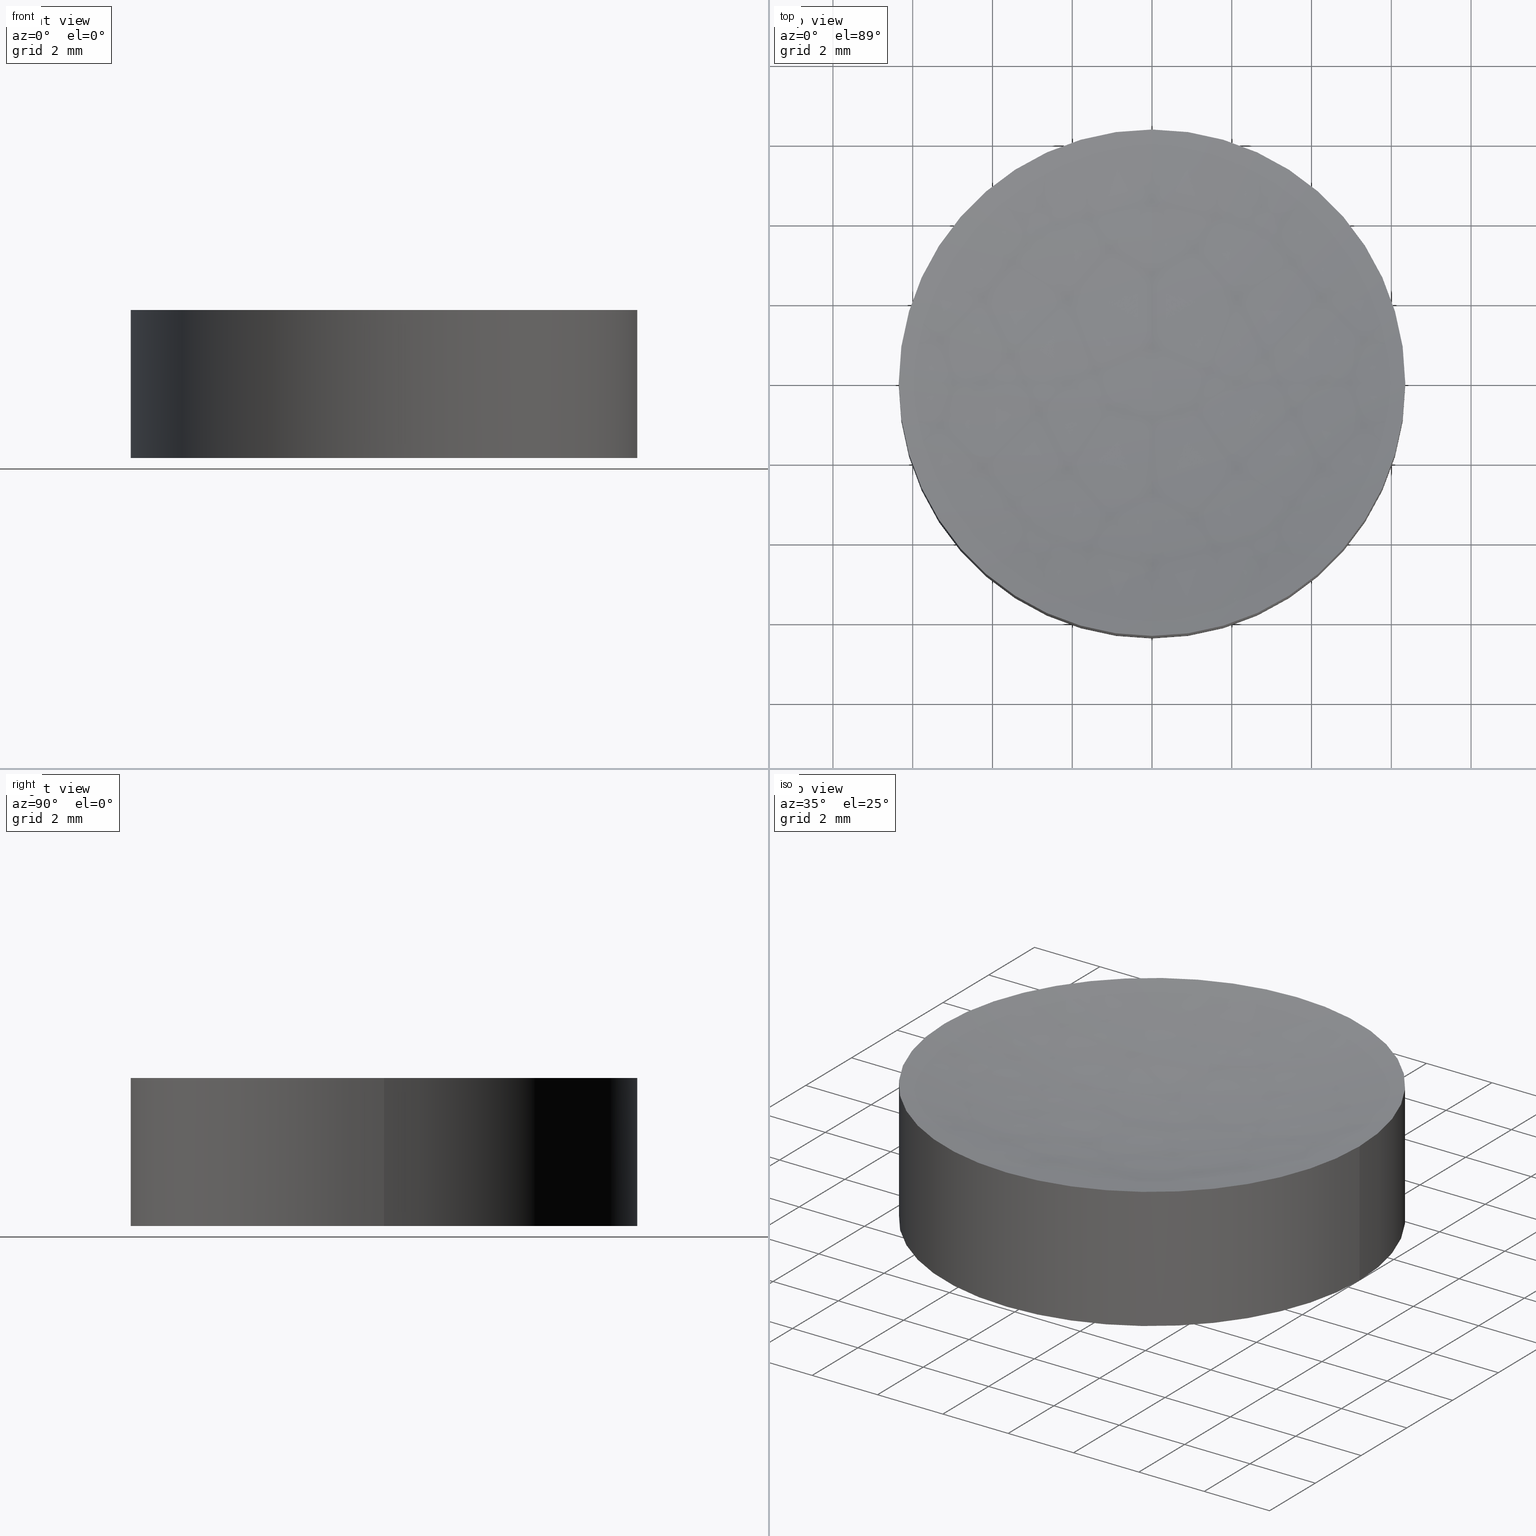
[diagram: canonical four-view strip — front | top / right | iso, engineering-drawing reading convention]
A machine part, canonical four-view strip (front | top / right | iso — engineering-drawing reading convention). The complete STEP part file that produces these views, byte-faithful:
ISO-10303-21;
HEADER;
FILE_DESCRIPTION (( 'STEP AP203' ),
    '1' );
FILE_NAME ('114-1110E UVFS bi-cv 12.7 F-30.STEP',
    '2019-01-21T08:53:15',
    ( '' ),
    ( '' ),
    'SwSTEP 2.0',
    'SolidWorks 2017',
    '' );
FILE_SCHEMA (( 'CONFIG_CONTROL_DESIGN' ));
ENDSEC;

DATA;
#1 = DIRECTION ( 'NONE',  ( 1.000000000000000000, 0.0000000000000000000, 0.0000000000000000000 ) ) ;
#2 = PERSON_AND_ORGANIZATION ( #130, #147 ) ;
#3 = CC_DESIGN_DATE_AND_TIME_ASSIGNMENT ( #217, #119, ( #105 ) ) ;
#4 = CARTESIAN_POINT ( 'NONE',  ( 2.498001805406600200E-016, 1.221245327087670000E-015, -0.7055000044287750300 ) ) ;
#5 = CARTESIAN_POINT ( 'NONE',  ( -6.349999999999999600, 1.998896044546239400E-015, -0.7055000044287750300 ) ) ;
#6 = AXIS2_PLACEMENT_3D ( 'NONE', #239, #60, #262 ) ;
#7 = ORIENTED_EDGE ( 'NONE', *, *, #231, .F. ) ;
#8 = CARTESIAN_POINT ( 'NONE',  ( 4.325579220855148700, -2.177902016982213000, 0.003903626985692347500 ) ) ;
#9 = CARTESIAN_POINT ( 'NONE',  ( 6.441541557281147400, 2.177902016982218300, 2.775102109609572000 ) ) ;
#10 = EDGE_CURVE ( 'NONE', #125, #206, #278, .T. ) ;
#11 = CARTESIAN_POINT ( 'NONE',  ( 0.0000000000000000000, 0.0000000000000000000, 0.0000000000000000000 ) ) ;
#12 = COORDINATED_UNIVERSAL_TIME_OFFSET ( 2, 0, .AHEAD. ) ;
#13 = CARTESIAN_POINT ( 'NONE',  ( 1.040834085586084300E-014, -6.424929541777834700, 3.022462348102943800 ) ) ;
#14 = CARTESIAN_POINT ( 'NONE',  ( 4.325579220855164700, -2.177902016982220500, 2.296096373014305600 ) ) ;
#15 = CARTESIAN_POINT ( 'NONE',  ( 2.097568141156078300, 6.424929541777832900, 3.022462348102940200 ) ) ;
#16 = PERSON_AND_ORGANIZATION ( #130, #147 ) ;
#17 = CC_DESIGN_DATE_AND_TIME_ASSIGNMENT ( #254, #160, ( #24 ) ) ;
#18 = DIRECTION ( 'NONE',  ( 1.000000000000000000, 0.0000000000000000000, 0.0000000000000000000 ) ) ;
#19 = ORIENTED_EDGE ( 'NONE', *, *, #293, .F. ) ;
#20 = LOCAL_TIME ( 10, 53, 15.00000000000000000, #259 ) ;
#21 =( GEOMETRIC_REPRESENTATION_CONTEXT ( 3 ) GLOBAL_UNCERTAINTY_ASSIGNED_CONTEXT ( ( #101 ) ) GLOBAL_UNIT_ASSIGNED_CONTEXT ( ( #157, #292, #159 ) ) REPRESENTATION_CONTEXT ( 'NONE', 'WORKASPACE' ) );
#22 = ADVANCED_BREP_SHAPE_REPRESENTATION ( '114-1110E UVFS bi-cv 12.7 F-30', ( #208, #273 ), #21 ) ;
#23 = CARTESIAN_POINT ( 'NONE',  ( -2.097568141156064900, -6.424929541777834700, 3.022462348102942000 ) ) ;
#24 = SECURITY_CLASSIFICATION ( '', '', #276 ) ;
#25 = PERSON_AND_ORGANIZATION ( #130, #147 ) ;
#26 = VECTOR ( 'NONE', #253, 1000.000000000000000 ) ;
#27 = AXIS2_PLACEMENT_3D ( 'NONE', #267, #288, #38 ) ;
#28 = CARTESIAN_POINT ( 'NONE',  ( -4.325579220855152200, 2.177902016982218700, 2.296096373014302500 ) ) ;
#29 = ORIENTED_EDGE ( 'NONE', *, *, #222, .F. ) ;
#30 = DIRECTION ( 'NONE',  ( 0.0000000000000000000, 0.0000000000000000000, 1.000000000000000000 ) ) ;
#31 = ADVANCED_FACE ( 'NONE', ( #186 ), #220, .F. ) ;
#32 = CARTESIAN_POINT ( 'NONE',  ( -2.097568141156078300, -6.424929541777815200, -0.7224623481029369700 ) ) ;
#33 = ORIENTED_EDGE ( 'NONE', *, *, #185, .F. ) ;
#34 = CARTESIAN_POINT ( 'NONE',  ( -3.552713678800500100E-015, 6.424929541777819600, -0.7224623481029355300 ) ) ;
#35 = DIRECTION ( 'NONE',  ( 1.000000000000000000, 0.0000000000000000000, 0.0000000000000000000 ) ) ;
#36 = CARTESIAN_POINT ( 'NONE',  ( 3.552713678800499400E-015, -6.350000000000000500, 3.005500004428780500 ) ) ;
#37 = CARTESIAN_POINT ( 'NONE',  ( 2.498001805406600200E-016, 1.221245327087670000E-015, -0.7055000044287750300 ) ) ;
#38 = DIRECTION ( 'NONE',  ( 1.000000000000000000, 0.0000000000000000000, 0.0000000000000000000 ) ) ;
#39 = CC_DESIGN_SECURITY_CLASSIFICATION ( #24, ( #166 ) ) ;
#40 = CARTESIAN_POINT ( 'NONE',  ( 6.227957547520616400, -6.424929541777834700, 3.718589182496089100 ) ) ;
#41 = EDGE_LOOP ( 'NONE', ( #77, #109, #178 ) ) ;
#42 = DIRECTION ( 'NONE',  ( 1.000000000000000000, 0.0000000000000000000, 0.0000000000000000000 ) ) ;
#43 = PRODUCT ( '114-1110E UVFS bi-cv 12.7 F-30', '114-1110E UVFS bi-cv 12.7 F-30', '', ( #45 ) ) ;
#44 = AXIS2_PLACEMENT_3D ( 'NONE', #4, #225, #129 ) ;
#45 = MECHANICAL_CONTEXT ( 'NONE', #207, 'mechanical' ) ;
#46 = PERSON_AND_ORGANIZATION_ROLE ( 'design_owner' ) ;
#47 = DATE_AND_TIME ( #295, #197 ) ;
#48 = ORIENTED_EDGE ( 'NONE', *, *, #243, .T. ) ;
#49 =( BOUNDED_SURFACE ( )  B_SPLINE_SURFACE ( 3, 3, ( 
 ( #65, #153, #15, #155 ),
 ( #9, #152, #87, #63 ),
 ( #183, #14, #180, #182 ),
 ( #40, #229, #134, #13 ) ),
 .UNSPECIFIED., .F., .F., .F. ) 
 B_SPLINE_SURFACE_WITH_KNOTS ( ( 4, 4 ),
 ( 4, 4 ),
 ( 0.0000000000000000000, 1.000000000000000000 ),
 ( 0.0000000000000000000, 1.000000000000000000 ),
 .UNSPECIFIED. ) 
 GEOMETRIC_REPRESENTATION_ITEM ( )  RATIONAL_B_SPLINE_SURFACE ( (
 ( 1.000000000000000000, 0.9958741073760455400, 0.9958741073760455400, 1.000000000000000000),
 ( 0.9833514840856564200, 0.9792942814507127300, 0.9792942814507127300, 0.9833514840856564200),
 ( 0.9833514840856564200, 0.9792942814507127300, 0.9792942814507127300, 0.9833514840856564200),
 ( 1.000000000000000000, 0.9958741073760455400, 0.9958741073760455400, 1.000000000000000000) ) ) 
 REPRESENTATION_ITEM ( '' )  SURFACE ( )  );
#50 = DESIGN_CONTEXT ( 'detailed design', #187, 'design' ) ;
#51 = LOCAL_TIME ( 10, 53, 15.00000000000000000, #84 ) ;
#52 = CIRCLE ( 'NONE', #27, 6.349999999999999600 ) ;
#53 = CARTESIAN_POINT ( 'NONE',  ( 3.552713678800500100E-015, -2.177902016982221900, 2.055102029540439200 ) ) ;
#54 = EDGE_CURVE ( 'NONE', #156, #106, #177, .T. ) ;
#55 = ADVANCED_FACE ( 'NONE', ( #260 ), #241, .F. ) ;
#56 = CARTESIAN_POINT ( 'NONE',  ( -6.227957547520603900, -6.424929541777834700, 3.718589182496088600 ) ) ;
#57 = DATE_AND_TIME ( #104, #161 ) ;
#58 = VECTOR ( 'NONE', #203, 1000.000000000000000 ) ;
#59 = CARTESIAN_POINT ( 'NONE',  ( -3.552713678800500100E-015, -6.424929541777815200, -0.7224623481029389700 ) ) ;
#60 = DIRECTION ( 'NONE',  ( 0.0000000000000000000, 0.0000000000000000000, 1.000000000000000000 ) ) ;
#61 = ORIENTED_EDGE ( 'NONE', *, *, #71, .T. ) ;
#62 = CARTESIAN_POINT ( 'NONE',  ( 6.227957547520604800, 6.424929541777819600, -1.418589182496081900 ) ) ;
#63 = CARTESIAN_POINT ( 'NONE',  ( 1.040834085586084400E-014, 2.177902016982219200, 2.055102029540437400 ) ) ;
#64 = DIRECTION ( 'NONE',  ( -0.0000000000000000000, -0.0000000000000000000, -1.000000000000000000 ) ) ;
#65 = CARTESIAN_POINT ( 'NONE',  ( 6.227957547520617300, 6.424929541777832900, 3.718589182496085500 ) ) ;
#66 = CARTESIAN_POINT ( 'NONE',  ( 6.349999999999999600, 1.221245327087670000E-015, 3.005500004428780100 ) ) ;
#67 = APPROVAL ( #274, 'UNSPECIFIED' ) ;
#68 = APPROVAL_ROLE ( '' ) ;
#69 = ORIENTED_EDGE ( 'NONE', *, *, #293, .T. ) ;
#70 = APPROVAL_STATUS ( 'not_yet_approved' ) ;
#71 = EDGE_CURVE ( 'NONE', #272, #287, #85, .T. ) ;
#72 = CIRCLE ( 'NONE', #120, 28.92999999999999600 ) ;
#73 = APPROVAL ( #70, 'UNSPECIFIED' ) ;
#74 = CARTESIAN_POINT ( 'NONE',  ( -2.169502962630948800, 2.177902016982218700, 2.055102029540436500 ) ) ;
#75 = PERSON_AND_ORGANIZATION ( #130, #147 ) ;
#76 = CYLINDRICAL_SURFACE ( 'NONE', #151, 6.349999999999999600 ) ;
#77 = ORIENTED_EDGE ( 'NONE', *, *, #172, .F. ) ;
#78 = CARTESIAN_POINT ( 'NONE',  ( -1.040834085586084400E-014, -2.177902016982212500, 0.2448979704595609700 ) ) ;
#79 = CC_DESIGN_APPROVAL ( #158, ( #24 ) ) ;
#80 = APPROVAL_PERSON_ORGANIZATION ( #75, #158, #68 ) ;
#81 = EDGE_CURVE ( 'NONE', #223, #272, #128, .T. ) ;
#82 = CARTESIAN_POINT ( 'NONE',  ( -4.325579220855163800, -2.177902016982213000, 0.003903626985696033800 ) ) ;
#83 = ORIENTED_EDGE ( 'NONE', *, *, #222, .T. ) ;
#84 = COORDINATED_UNIVERSAL_TIME_OFFSET ( 2, 0, .AHEAD. ) ;
#85 = CIRCLE ( 'NONE', #162, 6.349999999999999600 ) ;
#86 = ORIENTED_EDGE ( 'NONE', *, *, #172, .T. ) ;
#87 = CARTESIAN_POINT ( 'NONE',  ( 2.169502962630963000, 2.177902016982219200, 2.055102029540437900 ) ) ;
#88 = PERSON_AND_ORGANIZATION ( #130, #147 ) ;
#89 = CC_DESIGN_APPROVAL ( #73, ( #166 ) ) ;
#90 = CARTESIAN_POINT ( 'NONE',  ( 6.349999999999999600, 1.221245327087670000E-015, -0.7055000044287750300 ) ) ;
#91 = APPROVAL_PERSON_ORGANIZATION ( #149, #73, #291 ) ;
#92 = ORIENTED_EDGE ( 'NONE', *, *, #71, .F. ) ;
#93 = APPLICATION_PROTOCOL_DEFINITION ( 'international standard', 'config_control_design', 1994, #187 ) ;
#94 = PERSON_AND_ORGANIZATION_ROLE ( 'classification_officer' ) ;
#95 = EDGE_LOOP ( 'NONE', ( #83, #86, #279, #257, #139, #7 ) ) ;
#96 = CARTESIAN_POINT ( 'NONE',  ( 3.552713678800499400E-015, 6.424929541777832900, 3.022462348102938900 ) ) ;
#97 = ADVANCED_FACE ( 'NONE', ( #242 ), #131, .F. ) ;
#98 = CARTESIAN_POINT ( 'NONE',  ( -6.349999999999999600, 1.998896044546239400E-015, -0.7055000044287750300 ) ) ;
#99 = CC_DESIGN_PERSON_AND_ORGANIZATION_ASSIGNMENT ( #132, #46, ( #43 ) ) ;
#100 = CARTESIAN_POINT ( 'NONE',  ( 2.498001805406600200E-016, 1.221245327087670000E-015, 3.005500004428780100 ) ) ;
#101 = UNCERTAINTY_MEASURE_WITH_UNIT (LENGTH_MEASURE( 1.000000000000000100E-005 ), #157, 'distance_accuracy_value', 'NONE');
#102 = CARTESIAN_POINT ( 'NONE',  ( -4.182154770929388500, 6.424929541777819600, -0.9554659741761513100 ) ) ;
#103 = CARTESIAN_POINT ( 'NONE',  ( -1.040834085586084300E-014, -6.424929541777815200, -0.7224623481029364100 ) ) ;
#104 = CALENDAR_DATE ( 2019, 21, 1 ) ;
#105 = PRODUCT_DEFINITION ( 'UNKNOWN', '', #166, #50 ) ;
#106 = VERTEX_POINT ( 'NONE', #143 ) ;
#107 = CARTESIAN_POINT ( 'NONE',  ( 4.182154770929374300, -6.424929541777815200, -0.9554659741761583100 ) ) ;
#108 = DIRECTION ( 'NONE',  ( -0.0000000000000000000, -0.0000000000000000000, -1.000000000000000000 ) ) ;
#109 = ORIENTED_EDGE ( 'NONE', *, *, #221, .T. ) ;
#110 = CARTESIAN_POINT ( 'NONE',  ( 2.097568141156064900, 6.424929541777819600, -0.7224623481029354100 ) ) ;
#111 = DIRECTION ( 'NONE',  ( -0.0000000000000000000, -0.0000000000000000000, -1.000000000000000000 ) ) ;
#112 = EDGE_CURVE ( 'NONE', #125, #156, #286, .T. ) ;
#113 = DIRECTION ( 'NONE',  ( -1.000000000000000000, 0.0000000000000000000, 0.0000000000000000000 ) ) ;
#114 = DIRECTION ( 'NONE',  ( 1.000000000000000000, 8.881784197001252300E-016, 0.0000000000000000000 ) ) ;
#115 = DIRECTION ( 'NONE',  ( 0.0000000000000000000, 1.000000000000000000, -2.398511546459463900E-016 ) ) ;
#116 = DIRECTION ( 'NONE',  ( 0.0000000000000000000, 0.0000000000000000000, 1.000000000000000000 ) ) ;
#117 = PRODUCT_RELATED_PRODUCT_CATEGORY ( 'detail', '', ( #43 ) ) ;
#118 = APPLICATION_PROTOCOL_DEFINITION ( 'international standard', 'config_control_design', 1994, #207 ) ;
#119 = DATE_TIME_ROLE ( 'creation_date' ) ;
#120 = AXIS2_PLACEMENT_3D ( 'NONE', #248, #249, #115 ) ;
#121 = CARTESIAN_POINT ( 'NONE',  ( -4.182154770929376000, 6.424929541777832900, 3.255465974176158500 ) ) ;
#122 = ADVANCED_FACE ( 'NONE', ( #205 ), #123, .T. ) ;
#123 = CYLINDRICAL_SURFACE ( 'NONE', #44, 6.349999999999999600 ) ;
#124 = CARTESIAN_POINT ( 'NONE',  ( -6.441541557281146500, 2.177902016982216500, -0.4751021096095700000 ) ) ;
#125 = VERTEX_POINT ( 'NONE', #5 ) ;
#126 = AXIS2_PLACEMENT_3D ( 'NONE', #246, #113, #138 ) ;
#127 = CARTESIAN_POINT ( 'NONE',  ( 2.498001805406600200E-016, 1.221245327087670000E-015, 3.005500004428780100 ) ) ;
#128 = CIRCLE ( 'NONE', #233, 6.349999999999999600 ) ;
#129 = DIRECTION ( 'NONE',  ( 1.000000000000000000, 0.0000000000000000000, 0.0000000000000000000 ) ) ;
#130 = PERSON ( 'UNSPECIFIED', 'UNSPECIFIED', 'UNSPECIFIED', ('UNSPECIFIED'), ('UNSPECIFIED'), ('UNSPECIFIED') ) ;
#131 =( BOUNDED_SURFACE ( )  B_SPLINE_SURFACE ( 3, 3, ( 
 ( #34, #110, #261, #62 ),
 ( #174, #285, #263, #224 ),
 ( #283, #226, #8, #145 ),
 ( #59, #176, #107, #284 ) ),
 .UNSPECIFIED., .F., .F., .F. ) 
 B_SPLINE_SURFACE_WITH_KNOTS ( ( 4, 4 ),
 ( 4, 4 ),
 ( 0.0000000000000000000, 1.000000000000000000 ),
 ( 0.0000000000000000000, 1.000000000000000000 ),
 .UNSPECIFIED. ) 
 GEOMETRIC_REPRESENTATION_ITEM ( )  RATIONAL_B_SPLINE_SURFACE ( (
 ( 1.000000000000000000, 0.9958741073760455400, 0.9958741073760455400, 1.000000000000000000),
 ( 0.9833514840856564200, 0.9792942814507127300, 0.9792942814507127300, 0.9833514840856564200),
 ( 0.9833514840856564200, 0.9792942814507127300, 0.9792942814507127300, 0.9833514840856564200),
 ( 1.000000000000000000, 0.9958741073760455400, 0.9958741073760455400, 1.000000000000000000) ) ) 
 REPRESENTATION_ITEM ( '' )  SURFACE ( )  );
#132 = PERSON_AND_ORGANIZATION ( #130, #147 ) ;
#133 = CIRCLE ( 'NONE', #251, 6.349999999999999600 ) ;
#134 = CARTESIAN_POINT ( 'NONE',  ( 2.097568141156077800, -6.424929541777834700, 3.022462348102943800 ) ) ;
#135 = PERSON_AND_ORGANIZATION_ROLE ( 'creator' ) ;
#136 = PERSON_AND_ORGANIZATION ( #130, #147 ) ;
#137 = EDGE_LOOP ( 'NONE', ( #227, #230, #218, #210, #61, #48 ) ) ;
#138 = DIRECTION ( 'NONE',  ( 0.0000000000000000000, 1.000000000000000000, 2.398511546459463900E-016 ) ) ;
#139 = ORIENTED_EDGE ( 'NONE', *, *, #81, .T. ) ;
#140 = CARTESIAN_POINT ( 'NONE',  ( -6.441541557281133200, -2.177902016982221900, 2.775102109609575200 ) ) ;
#141 = CARTESIAN_POINT ( 'NONE',  ( -6.441541557281134100, 2.177902016982218300, 2.775102109609572000 ) ) ;
#142 = EDGE_LOOP ( 'NONE', ( #19, #33, #188 ) ) ;
#143 = CARTESIAN_POINT ( 'NONE',  ( 6.349999999999999600, 1.221245327087670000E-015, -0.7055000044287750300 ) ) ;
#144 = DIRECTION ( 'NONE',  ( -0.0000000000000000000, -0.0000000000000000000, -1.000000000000000000 ) ) ;
#145 = CARTESIAN_POINT ( 'NONE',  ( 6.441541557281130500, -2.177902016982213000, -0.4751021096095771600 ) ) ;
#146 = CARTESIAN_POINT ( 'NONE',  ( 2.498001805406600200E-016, 1.221245327087670000E-015, -0.7055000044287750300 ) ) ;
#147 = ORGANIZATION ( 'UNSPECIFIED', 'UNSPECIFIED', '' ) ;
#148 = EDGE_LOOP ( 'NONE', ( #256, #29, #266 ) ) ;
#149 = PERSON_AND_ORGANIZATION ( #130, #147 ) ;
#150 = DIRECTION ( 'NONE',  ( 1.000000000000000000, 0.0000000000000000000, 0.0000000000000000000 ) ) ;
#151 = AXIS2_PLACEMENT_3D ( 'NONE', #146, #175, #35 ) ;
#152 = CARTESIAN_POINT ( 'NONE',  ( 4.325579220855165600, 2.177902016982218700, 2.296096373014302500 ) ) ;
#153 = CARTESIAN_POINT ( 'NONE',  ( 4.182154770929389400, 6.424929541777832900, 3.255465974176158000 ) ) ;
#154 = LINE ( 'NONE', #90, #58 ) ;
#155 = CARTESIAN_POINT ( 'NONE',  ( 1.040834085586084300E-014, 6.424929541777832900, 3.022462348102939800 ) ) ;
#156 = VERTEX_POINT ( 'NONE', #258 ) ;
#157 =( LENGTH_UNIT ( ) NAMED_UNIT ( * ) SI_UNIT ( .MILLI., .METRE. ) );
#158 = APPROVAL ( #271, 'UNSPECIFIED' ) ;
#159 =( NAMED_UNIT ( * ) SI_UNIT ( $, .STERADIAN. ) SOLID_ANGLE_UNIT ( ) );
#160 = DATE_TIME_ROLE ( 'classification_date' ) ;
#161 = LOCAL_TIME ( 10, 53, 15.00000000000000000, #264 ) ;
#162 = AXIS2_PLACEMENT_3D ( 'NONE', #100, #144, #1 ) ;
#163 = CARTESIAN_POINT ( 'NONE',  ( 3.552713678800499400E-015, -6.424929541777834700, 3.022462348102942500 ) ) ;
#164 = APPROVAL_PERSON_ORGANIZATION ( #2, #67, #275 ) ;
#165 = FACE_OUTER_BOUND ( 'NONE', #232, .T. ) ;
#166 = PRODUCT_DEFINITION_FORMATION_WITH_SPECIFIED_SOURCE ( 'ANY', '', #43, .NOT_KNOWN. ) ;
#167 = CARTESIAN_POINT ( 'NONE',  ( -9.540979117872439000E-015, 2.177902016982217000, 0.2448979704595649100 ) ) ;
#168 = APPROVAL_DATE_TIME ( #47, #158 ) ;
#169 = PRODUCT_DEFINITION_SHAPE ( 'NONE', 'NONE',  #105 ) ;
#170 = ADVANCED_FACE ( 'NONE', ( #200 ), #76, .T. ) ;
#171 = CARTESIAN_POINT ( 'NONE',  ( -4.325579220855163800, 2.177902016982217000, 0.003903626985700152900 ) ) ;
#172 = EDGE_CURVE ( 'NONE', #235, #125, #52, .T. ) ;
#173 = CARTESIAN_POINT ( 'NONE',  ( -2.097568141156077800, 6.424929541777819600, -0.7224623481029333000 ) ) ;
#174 = CARTESIAN_POINT ( 'NONE',  ( -3.552713678800500900E-015, 2.177902016982216500, 0.2448979704595626000 ) ) ;
#175 = DIRECTION ( 'NONE',  ( 0.0000000000000000000, 0.0000000000000000000, 1.000000000000000000 ) ) ;
#176 = CARTESIAN_POINT ( 'NONE',  ( 2.097568141156064900, -6.424929541777815200, -0.7224623481029389700 ) ) ;
#177 = CIRCLE ( 'NONE', #179, 6.349999999999999600 ) ;
#178 = ORIENTED_EDGE ( 'NONE', *, *, #112, .F. ) ;
#179 = AXIS2_PLACEMENT_3D ( 'NONE', #195, #30, #196 ) ;
#180 = CARTESIAN_POINT ( 'NONE',  ( 2.169502962630962500, -2.177902016982220100, 2.055102029540441000 ) ) ;
#181 = CIRCLE ( 'NONE', #265, 6.349999999999999600 ) ;
#182 = CARTESIAN_POINT ( 'NONE',  ( 1.040834085586084400E-014, -2.177902016982221400, 2.055102029540440100 ) ) ;
#183 = CARTESIAN_POINT ( 'NONE',  ( 6.441541557281146500, -2.177902016982221900, 2.775102109609575200 ) ) ;
#184 = PERSON_AND_ORGANIZATION_ROLE ( 'creator' ) ;
#185 = EDGE_CURVE ( 'NONE', #206, #223, #198, .T. ) ;
#186 = FACE_OUTER_BOUND ( 'NONE', #142, .T. ) ;
#187 = APPLICATION_CONTEXT ( 'configuration controlled 3d designs of mechanical parts and assemblies' ) ;
#188 = ORIENTED_EDGE ( 'NONE', *, *, #243, .F. ) ;
#189 = CARTESIAN_POINT ( 'NONE',  ( -4.182154770929375200, -6.424929541777834700, 3.255465974176161600 ) ) ;
#190 = SHAPE_DEFINITION_REPRESENTATION ( #169, #22 ) ;
#191 = CARTESIAN_POINT ( 'NONE',  ( 3.552713678800500100E-015, 2.177902016982218300, 2.055102029540436500 ) ) ;
#192 = CARTESIAN_POINT ( 'NONE',  ( -2.169502962630962500, -2.177902016982212500, 0.2448979704595604400 ) ) ;
#193 = CC_DESIGN_APPROVAL ( #67, ( #105 ) ) ;
#194 = ADVANCED_FACE ( 'NONE', ( #165 ), #49, .F. ) ;
#195 = CARTESIAN_POINT ( 'NONE',  ( 2.498001805406600200E-016, 1.221245327087670000E-015, -0.7055000044287750300 ) ) ;
#196 = DIRECTION ( 'NONE',  ( 1.000000000000000000, 0.0000000000000000000, 0.0000000000000000000 ) ) ;
#197 = LOCAL_TIME ( 10, 53, 15.00000000000000000, #12 ) ;
#198 = CIRCLE ( 'NONE', #215, 6.349999999999999600 ) ;
#199 = CALENDAR_DATE ( 2019, 21, 1 ) ;
#200 = FACE_OUTER_BOUND ( 'NONE', #137, .T. ) ;
#201 = APPROVAL_DATE_TIME ( #57, #67 ) ;
#202 = CARTESIAN_POINT ( 'NONE',  ( -6.349999999999999600, 1.998896044546239400E-015, 3.005500004428780100 ) ) ;
#203 = DIRECTION ( 'NONE',  ( 0.0000000000000000000, 0.0000000000000000000, 1.000000000000000000 ) ) ;
#204 = CALENDAR_DATE ( 2019, 21, 1 ) ;
#205 = FACE_OUTER_BOUND ( 'NONE', #95, .T. ) ;
#206 = VERTEX_POINT ( 'NONE', #202 ) ;
#207 = APPLICATION_CONTEXT ( 'configuration controlled 3d designs of mechanical parts and assemblies' ) ;
#208 = MANIFOLD_SOLID_BREP ( 'Imported1', #213 ) ;
#209 = COORDINATED_UNIVERSAL_TIME_OFFSET ( 2, 0, .AHEAD. ) ;
#210 = ORIENTED_EDGE ( 'NONE', *, *, #231, .T. ) ;
#211 = APPROVAL_DATE_TIME ( #247, #73 ) ;
#212 = CC_DESIGN_PERSON_AND_ORGANIZATION_ASSIGNMENT ( #88, #184, ( #166 ) ) ;
#213 = CLOSED_SHELL ( 'NONE', ( #55, #194, #122, #170, #97, #31 ) ) ;
#214 = CARTESIAN_POINT ( 'NONE',  ( -2.169502962630948800, -2.177902016982220500, 2.055102029540439600 ) ) ;
#215 = AXIS2_PLACEMENT_3D ( 'NONE', #289, #64, #114 ) ;
#216 = CARTESIAN_POINT ( 'NONE',  ( -9.540979117872439000E-015, 6.424929541777819600, -0.7224623481029329700 ) ) ;
#217 = DATE_AND_TIME ( #199, #51 ) ;
#218 = ORIENTED_EDGE ( 'NONE', *, *, #54, .T. ) ;
#219 = CARTESIAN_POINT ( 'NONE',  ( -6.441541557281146500, -2.177902016982213000, -0.4751021096095740500 ) ) ;
#220 =( BOUNDED_SURFACE ( )  B_SPLINE_SURFACE ( 3, 3, ( 
 ( #96, #252, #121, #280 ),
 ( #191, #74, #28, #141 ),
 ( #53, #214, #255, #140 ),
 ( #163, #23, #189, #56 ) ),
 .UNSPECIFIED., .F., .F., .F. ) 
 B_SPLINE_SURFACE_WITH_KNOTS ( ( 4, 4 ),
 ( 4, 4 ),
 ( 0.0000000000000000000, 1.000000000000000000 ),
 ( 0.0000000000000000000, 1.000000000000000000 ),
 .UNSPECIFIED. ) 
 GEOMETRIC_REPRESENTATION_ITEM ( )  RATIONAL_B_SPLINE_SURFACE ( (
 ( 1.000000000000000000, 0.9958741073760455400, 0.9958741073760455400, 1.000000000000000000),
 ( 0.9833514840856564200, 0.9792942814507127300, 0.9792942814507127300, 0.9833514840856564200),
 ( 0.9833514840856564200, 0.9792942814507127300, 0.9792942814507127300, 0.9833514840856564200),
 ( 1.000000000000000000, 0.9958741073760455400, 0.9958741073760455400, 1.000000000000000000) ) ) 
 REPRESENTATION_ITEM ( '' )  SURFACE ( )  );
#221 = EDGE_CURVE ( 'NONE', #235, #156, #72, .T. ) ;
#222 = EDGE_CURVE ( 'NONE', #106, #235, #133, .T. ) ;
#223 = VERTEX_POINT ( 'NONE', #268 ) ;
#224 = CARTESIAN_POINT ( 'NONE',  ( 6.441541557281131400, 2.177902016982216500, -0.4751021096095733300 ) ) ;
#225 = DIRECTION ( 'NONE',  ( 0.0000000000000000000, 0.0000000000000000000, 1.000000000000000000 ) ) ;
#226 = CARTESIAN_POINT ( 'NONE',  ( 2.169502962630947900, -2.177902016982213000, 0.2448979704595584100 ) ) ;
#227 = ORIENTED_EDGE ( 'NONE', *, *, #10, .F. ) ;
#228 = CARTESIAN_POINT ( 'NONE',  ( -3.552713678800500100E-015, 6.349999999999989000, -0.7055000044287748100 ) ) ;
#229 = CARTESIAN_POINT ( 'NONE',  ( 4.182154770929388500, -6.424929541777834700, 3.255465974176161600 ) ) ;
#230 = ORIENTED_EDGE ( 'NONE', *, *, #112, .T. ) ;
#231 = EDGE_CURVE ( 'NONE', #106, #272, #154, .T. ) ;
#232 = EDGE_LOOP ( 'NONE', ( #282, #69, #92 ) ) ;
#233 = AXIS2_PLACEMENT_3D ( 'NONE', #127, #108, #240 ) ;
#234 = CC_DESIGN_PERSON_AND_ORGANIZATION_ASSIGNMENT ( #136, #94, ( #24 ) ) ;
#235 = VERTEX_POINT ( 'NONE', #228 ) ;
#236 = CARTESIAN_POINT ( 'NONE',  ( -6.227957547520617300, 6.424929541777819600, -1.418589182496078600 ) ) ;
#237 = CARTESIAN_POINT ( 'NONE',  ( -6.227957547520617300, -6.424929541777815200, -1.418589182496082100 ) ) ;
#238 = CARTESIAN_POINT ( 'NONE',  ( -4.182154770929388500, -6.424929541777815200, -0.9554659741761548600 ) ) ;
#239 = CARTESIAN_POINT ( 'NONE',  ( 2.498001805406600200E-016, 1.221245327087670000E-015, -0.7055000044287750300 ) ) ;
#240 = DIRECTION ( 'NONE',  ( 1.000000000000000000, -1.776356839400250500E-015, 0.0000000000000000000 ) ) ;
#241 =( BOUNDED_SURFACE ( )  B_SPLINE_SURFACE ( 3, 3, ( 
 ( #236, #102, #173, #216 ),
 ( #124, #171, #281, #167 ),
 ( #219, #82, #192, #78 ),
 ( #237, #238, #32, #103 ) ),
 .UNSPECIFIED., .F., .F., .F. ) 
 B_SPLINE_SURFACE_WITH_KNOTS ( ( 4, 4 ),
 ( 4, 4 ),
 ( 0.0000000000000000000, 1.000000000000000000 ),
 ( 0.0000000000000000000, 1.000000000000000000 ),
 .UNSPECIFIED. ) 
 GEOMETRIC_REPRESENTATION_ITEM ( )  RATIONAL_B_SPLINE_SURFACE ( (
 ( 1.000000000000000000, 0.9958741073760455400, 0.9958741073760455400, 1.000000000000000000),
 ( 0.9833514840856564200, 0.9792942814507127300, 0.9792942814507127300, 0.9833514840856564200),
 ( 0.9833514840856564200, 0.9792942814507127300, 0.9792942814507127300, 0.9833514840856564200),
 ( 1.000000000000000000, 0.9958741073760455400, 0.9958741073760455400, 1.000000000000000000) ) ) 
 REPRESENTATION_ITEM ( '' )  SURFACE ( )  );
#242 = FACE_OUTER_BOUND ( 'NONE', #148, .T. ) ;
#243 = EDGE_CURVE ( 'NONE', #287, #206, #181, .T. ) ;
#244 = CC_DESIGN_PERSON_AND_ORGANIZATION_ASSIGNMENT ( #16, #250, ( #166 ) ) ;
#245 = CARTESIAN_POINT ( 'NONE',  ( 2.498001805406600200E-016, 1.221245327087670000E-015, 3.005500004428780100 ) ) ;
#246 = CARTESIAN_POINT ( 'NONE',  ( 3.552713678800500100E-015, 0.0000000000000000000, 31.23000000000000000 ) ) ;
#247 = DATE_AND_TIME ( #270, #277 ) ;
#248 = CARTESIAN_POINT ( 'NONE',  ( -3.552713678800500100E-015, 0.0000000000000000000, -28.93000000000000000 ) ) ;
#249 = DIRECTION ( 'NONE',  ( 1.000000000000000000, 0.0000000000000000000, 0.0000000000000000000 ) ) ;
#250 = PERSON_AND_ORGANIZATION_ROLE ( 'design_supplier' ) ;
#251 = AXIS2_PLACEMENT_3D ( 'NONE', #37, #269, #42 ) ;
#252 = CARTESIAN_POINT ( 'NONE',  ( -2.097568141156064900, 6.424929541777832900, 3.022462348102938900 ) ) ;
#253 = DIRECTION ( 'NONE',  ( 0.0000000000000000000, 0.0000000000000000000, 1.000000000000000000 ) ) ;
#254 = DATE_AND_TIME ( #204, #20 ) ;
#255 = CARTESIAN_POINT ( 'NONE',  ( -4.325579220855151300, -2.177902016982220500, 2.296096373014306000 ) ) ;
#256 = ORIENTED_EDGE ( 'NONE', *, *, #221, .F. ) ;
#257 = ORIENTED_EDGE ( 'NONE', *, *, #185, .T. ) ;
#258 = CARTESIAN_POINT ( 'NONE',  ( -3.552713678800500100E-015, -6.349999999999987200, -0.7055000044287748100 ) ) ;
#259 = COORDINATED_UNIVERSAL_TIME_OFFSET ( 2, 0, .AHEAD. ) ;
#260 = FACE_OUTER_BOUND ( 'NONE', #41, .T. ) ;
#261 = CARTESIAN_POINT ( 'NONE',  ( 4.182154770929376000, 6.424929541777819600, -0.9554659741761550900 ) ) ;
#262 = DIRECTION ( 'NONE',  ( 1.000000000000000000, 0.0000000000000000000, 0.0000000000000000000 ) ) ;
#263 = CARTESIAN_POINT ( 'NONE',  ( 4.325579220855148700, 2.177902016982217000, 0.003903626985696359500 ) ) ;
#264 = COORDINATED_UNIVERSAL_TIME_OFFSET ( 2, 0, .AHEAD. ) ;
#265 = AXIS2_PLACEMENT_3D ( 'NONE', #245, #111, #150 ) ;
#266 = ORIENTED_EDGE ( 'NONE', *, *, #54, .F. ) ;
#267 = CARTESIAN_POINT ( 'NONE',  ( 2.498001805406600200E-016, 1.221245327087670000E-015, -0.7055000044287750300 ) ) ;
#268 = CARTESIAN_POINT ( 'NONE',  ( 3.552713678800499400E-015, 6.350000000000001400, 3.005500004428780500 ) ) ;
#269 = DIRECTION ( 'NONE',  ( 0.0000000000000000000, 0.0000000000000000000, 1.000000000000000000 ) ) ;
#270 = CALENDAR_DATE ( 2019, 21, 1 ) ;
#271 = APPROVAL_STATUS ( 'not_yet_approved' ) ;
#272 = VERTEX_POINT ( 'NONE', #66 ) ;
#273 = AXIS2_PLACEMENT_3D ( 'NONE', #11, #116, #18 ) ;
#274 = APPROVAL_STATUS ( 'not_yet_approved' ) ;
#275 = APPROVAL_ROLE ( '' ) ;
#276 = SECURITY_CLASSIFICATION_LEVEL ( 'unclassified' ) ;
#277 = LOCAL_TIME ( 10, 53, 15.00000000000000000, #209 ) ;
#278 = LINE ( 'NONE', #98, #26 ) ;
#279 = ORIENTED_EDGE ( 'NONE', *, *, #10, .T. ) ;
#280 = CARTESIAN_POINT ( 'NONE',  ( -6.227957547520605700, 6.424929541777832900, 3.718589182496085500 ) ) ;
#281 = CARTESIAN_POINT ( 'NONE',  ( -2.169502962630962100, 2.177902016982217400, 0.2448979704595644600 ) ) ;
#282 = ORIENTED_EDGE ( 'NONE', *, *, #81, .F. ) ;
#283 = CARTESIAN_POINT ( 'NONE',  ( -3.552713678800500900E-015, -2.177902016982213000, 0.2448979704595584100 ) ) ;
#284 = CARTESIAN_POINT ( 'NONE',  ( 6.227957547520603000, -6.424929541777815200, -1.418589182496085200 ) ) ;
#285 = CARTESIAN_POINT ( 'NONE',  ( 2.169502962630948800, 2.177902016982217000, 0.2448979704595625200 ) ) ;
#286 = CIRCLE ( 'NONE', #6, 6.349999999999999600 ) ;
#287 = VERTEX_POINT ( 'NONE', #36 ) ;
#288 = DIRECTION ( 'NONE',  ( 0.0000000000000000000, 0.0000000000000000000, 1.000000000000000000 ) ) ;
#289 = CARTESIAN_POINT ( 'NONE',  ( 2.498001805406600200E-016, 1.221245327087670000E-015, 3.005500004428780100 ) ) ;
#290 = CIRCLE ( 'NONE', #126, 28.92999999999999600 ) ;
#291 = APPROVAL_ROLE ( '' ) ;
#292 =( NAMED_UNIT ( * ) PLANE_ANGLE_UNIT ( ) SI_UNIT ( $, .RADIAN. ) );
#293 = EDGE_CURVE ( 'NONE', #223, #287, #290, .T. ) ;
#294 = CC_DESIGN_PERSON_AND_ORGANIZATION_ASSIGNMENT ( #25, #135, ( #105 ) ) ;
#295 = CALENDAR_DATE ( 2019, 21, 1 ) ;
ENDSEC;
END-ISO-10303-21;
